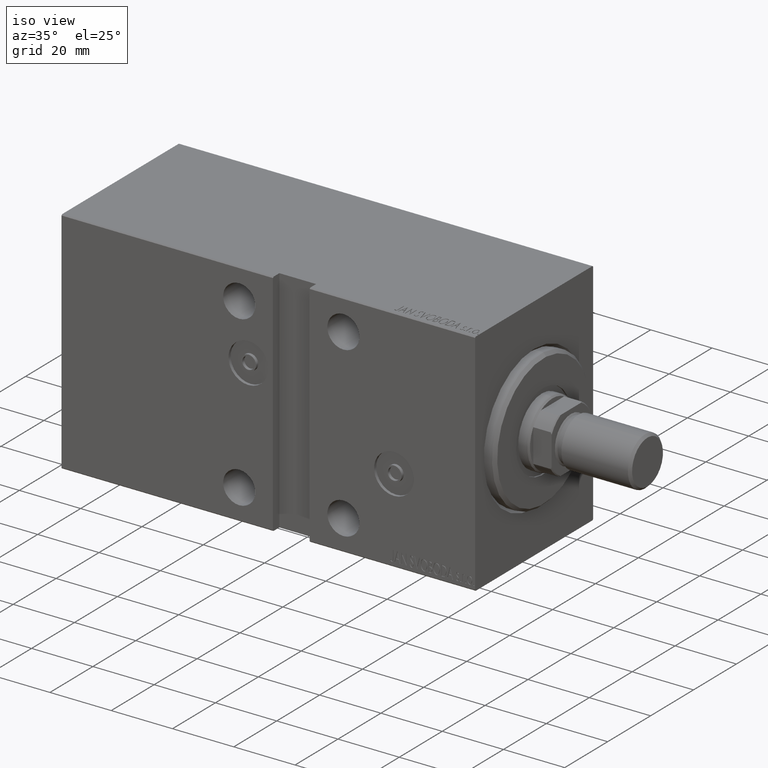
[diagram: clean part render]
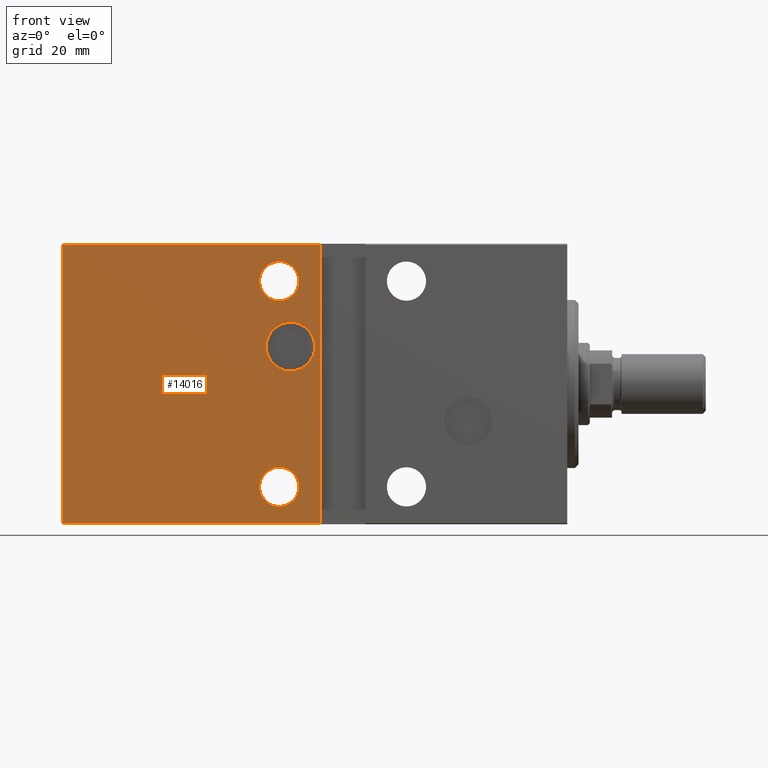
[diagram: tour spotlight — one face highlighted and labeled with its STEP entity id]
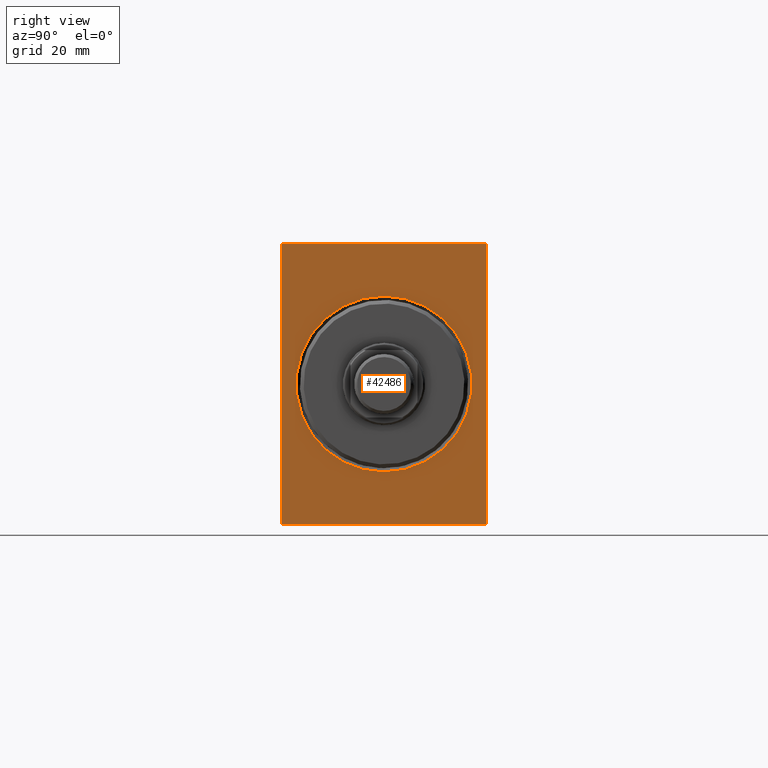
[diagram: tour spotlight — one face highlighted and labeled with its STEP entity id]
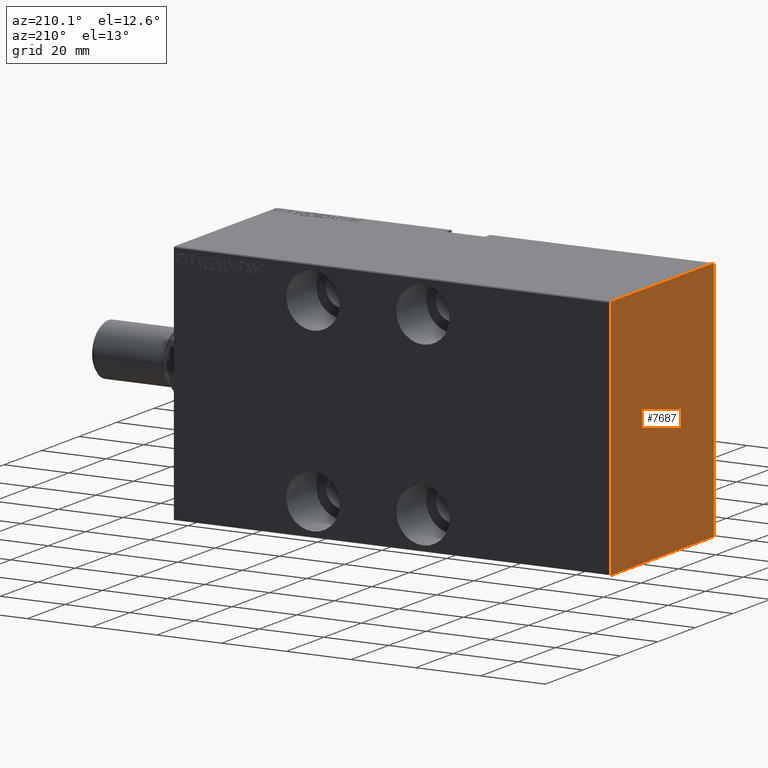
[diagram: tour spotlight — one face highlighted and labeled with its STEP entity id]
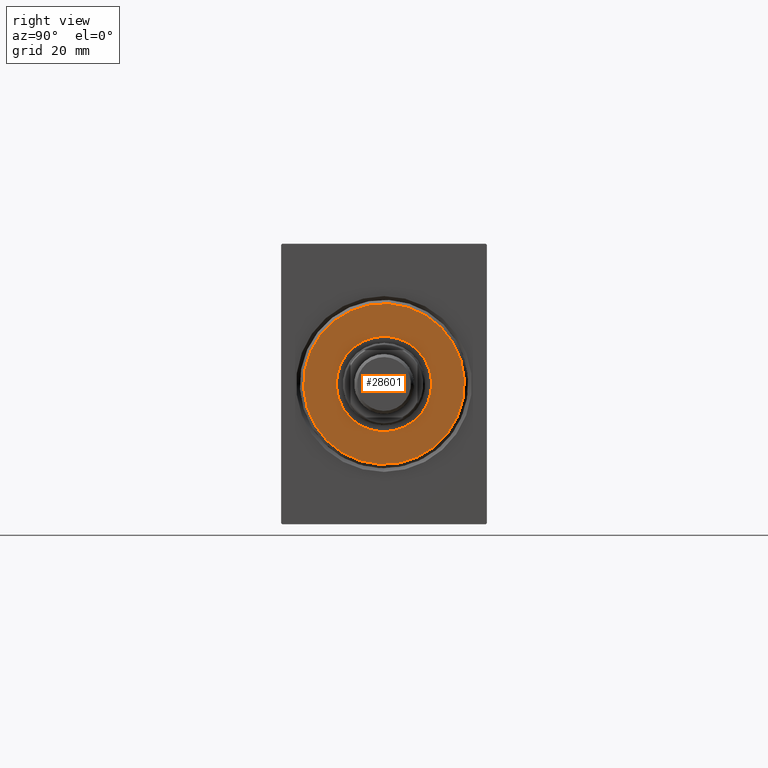
[diagram: tour spotlight — one face highlighted and labeled with its STEP entity id]
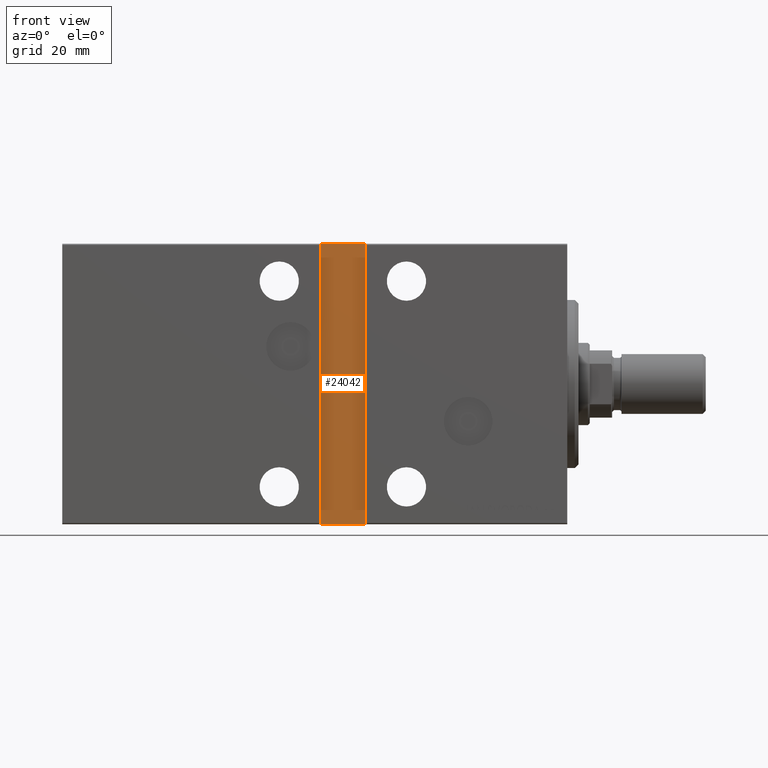
[diagram: tour spotlight — one face highlighted and labeled with its STEP entity id]
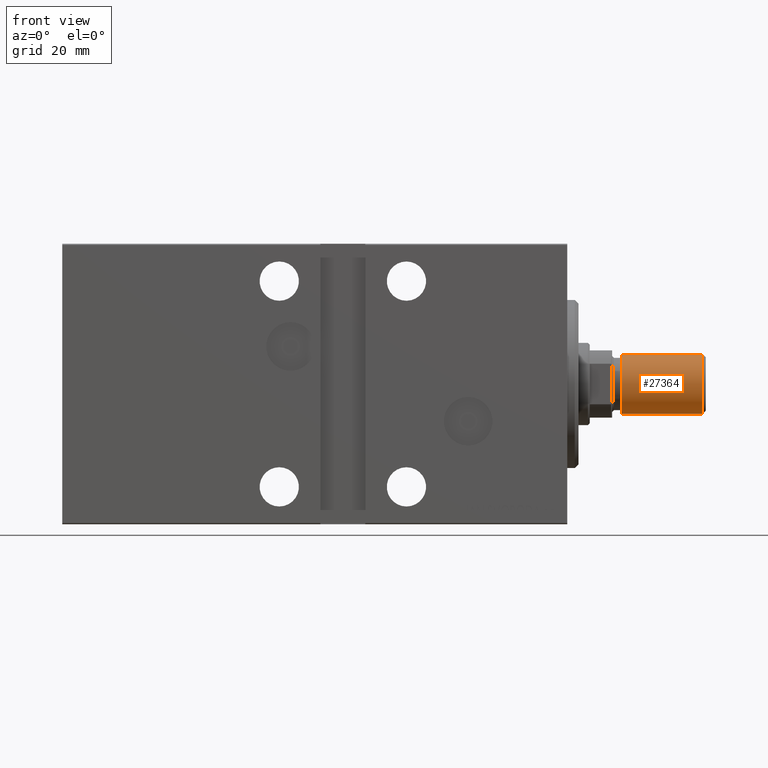
[diagram: tour spotlight — one face highlighted and labeled with its STEP entity id]
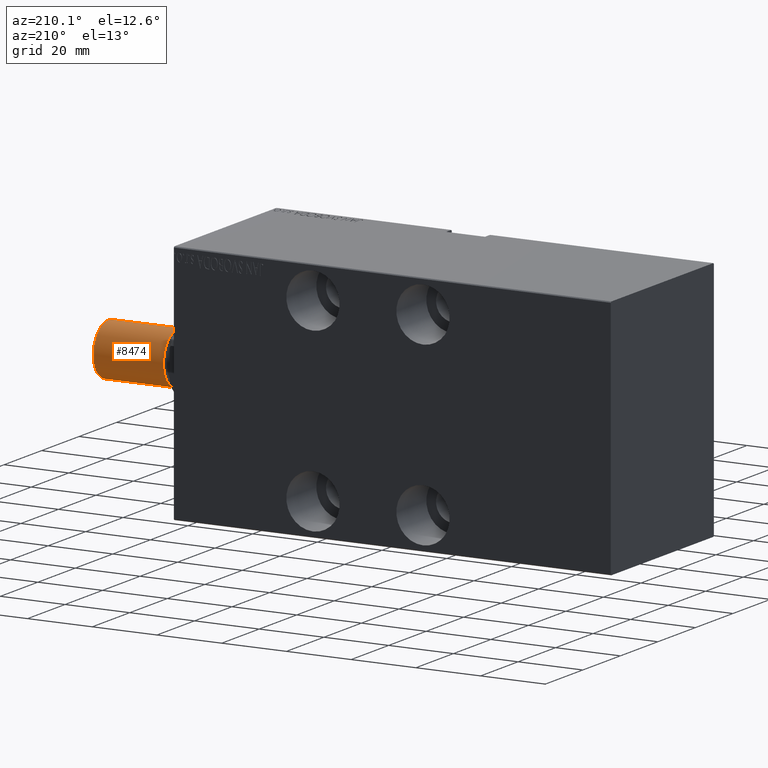
[diagram: tour spotlight — one face highlighted and labeled with its STEP entity id]
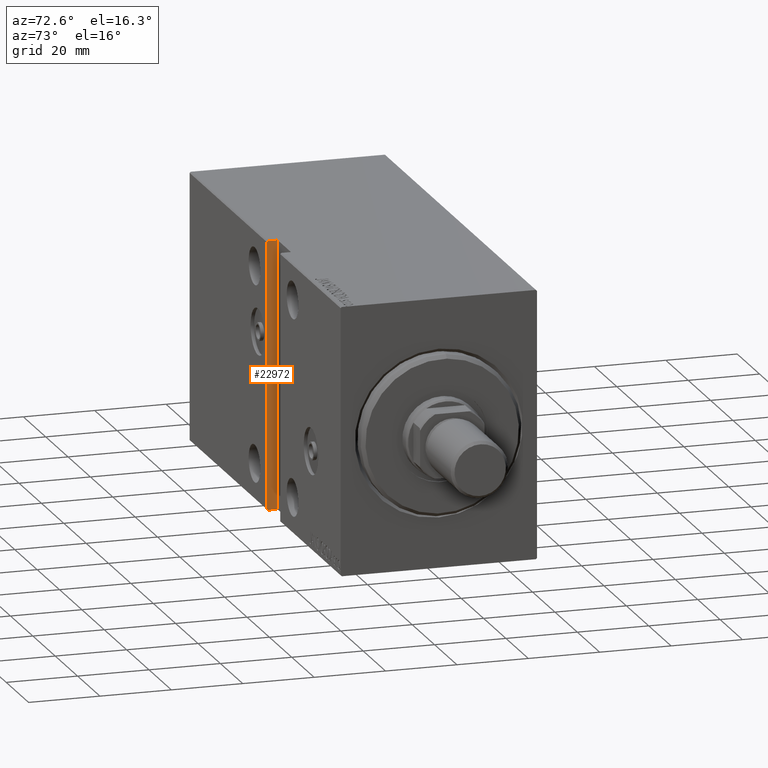
[diagram: tour spotlight — one face highlighted and labeled with its STEP entity id]
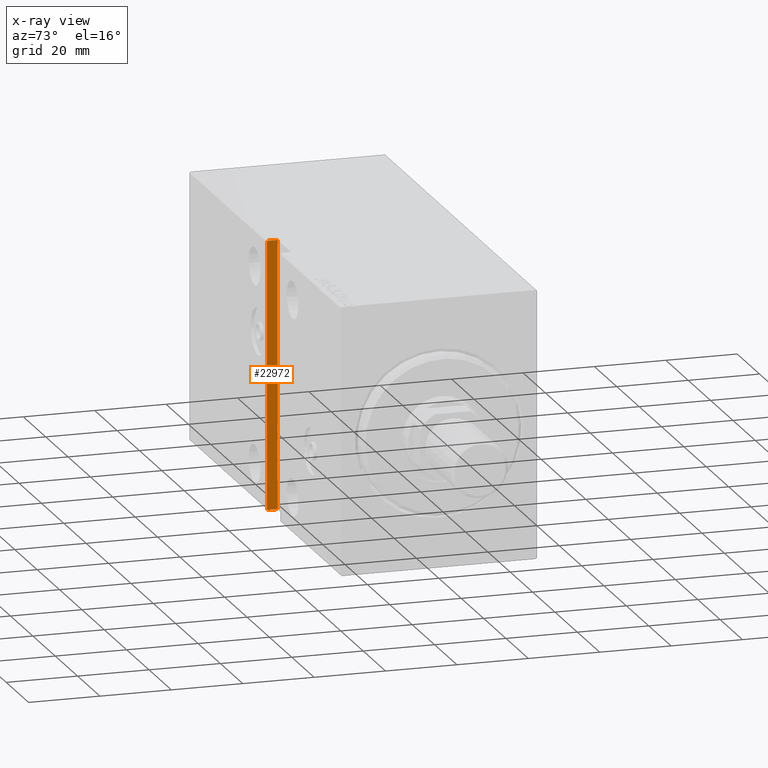
[diagram: x-ray of the same camera — body ghosted, this tour face saturated]
A machine part: a face-by-face anatomy tour. The part has 909 B-rep faces; the first image is the clean iso view, then the 8 largest visible faces are spotlighted one at a time (largest first), each with its STEP entity span.

Face 1 — front view, entity #14016. In plain terms, the highlighted planar face has unit normal (-0, 1, -0).
Definition (entity closure, byte-faithful):
#1264 = AXIS2_PLACEMENT_3D ( 'NONE', #22822, #43369, #9634 ) ;
#1391 = DIRECTION ( 'NONE',  ( 0.000000000000000000, 1.000000000000000000, 1.067522139062650425E-16 ) ) ;
#1718 = EDGE_CURVE ( 'NONE', #2265, #20925, #32822, .T. ) ;
#1750 = ORIENTED_EDGE ( 'NONE', *, *, #27455, .F. ) ;
#1864 = VERTEX_POINT ( 'NONE', #27452 ) ;
#2020 = FACE_OUTER_BOUND ( 'NONE', #36883, .T. ) ;
#2203 = ORIENTED_EDGE ( 'NONE', *, *, #34021, .F. ) ;
#2265 = VERTEX_POINT ( 'NONE', #33601 ) ;
#2428 = CARTESIAN_POINT ( 'NONE',  ( 66.00000000000001421, 27.50000000000000000, 37.50000000000001421 ) ) ;
#3398 = EDGE_LOOP ( 'NONE', ( #26917, #35622 ) ) ;
#4744 = DIRECTION ( 'NONE',  ( 0.000000000000000000, 0.000000000000000000, 1.000000000000000000 ) ) ;
#5166 = DIRECTION ( 'NONE',  ( 0.000000000000000000, 9.251858538542970348E-17, -1.000000000000000000 ) ) ;
#5597 = CARTESIAN_POINT ( 'NONE',  ( 135.0000000000000000, 27.50000000000000355, -37.50000000000000000 ) ) ;
#5632 = CIRCLE ( 'NONE', #25636, 5.250000000000004441 ) ;
#5853 = CARTESIAN_POINT ( 'NONE',  ( 66.00000000000000000, 27.50000000000000000, -37.19999999999998863 ) ) ;
#6729 = CARTESIAN_POINT ( 'NONE',  ( 77.00000000000001421, 27.50000000000002487, 32.75000000000000000 ) ) ;
#8188 = VERTEX_POINT ( 'NONE', #6729 ) ;
#8322 = VECTOR ( 'NONE', #21316, 1000.000000000000000 ) ;
#8631 = LINE ( 'NONE', #22701, #42677 ) ;
#8657 = DIRECTION ( 'NONE',  ( 0.000000000000000000, 0.000000000000000000, 1.000000000000000000 ) ) ;
#8878 = CARTESIAN_POINT ( 'NONE',  ( 77.00000000000000000, 27.50000000000002487, -27.50000000000000000 ) ) ;
#8906 = CARTESIAN_POINT ( 'NONE',  ( 74.00000000000000000, 27.50000000000000000, 10.00000000000000178 ) ) ;
#9634 = DIRECTION ( 'NONE',  ( 0.000000000000000000, 0.000000000000000000, 1.000000000000000000 ) ) ;
#9730 = CIRCLE ( 'NONE', #20465, 6.500000000000002665 ) ;
#10505 = EDGE_CURVE ( 'NONE', #40959, #8188, #27178, .T. ) ;
#10648 = VECTOR ( 'NONE', #12707, 1000.000000000000000 ) ;
#11825 = VERTEX_POINT ( 'NONE', #25979 ) ;
#12151 = CIRCLE ( 'NONE', #15721, 5.250000000000000888 ) ;
#12414 = EDGE_CURVE ( 'NONE', #2265, #25672, #36601, .T. ) ;
#12707 = DIRECTION ( 'NONE',  ( -1.850371707708594070E-16, 0.000000000000000000, -1.000000000000000000 ) ) ;
#13170 = EDGE_CURVE ( 'NONE', #1864, #29902, #35127, .T. ) ;
#13235 = EDGE_LOOP ( 'NONE', ( #1750, #2203 ) ) ;
#13471 = ORIENTED_EDGE ( 'NONE', *, *, #20826, .F. ) ;
#14016 = ADVANCED_FACE ( 'NONE', ( #22596, #36216, #32637, #2020 ), #22383, .F. ) ;
#15120 = AXIS2_PLACEMENT_3D ( 'NONE', #5597, #29519, #5166 ) ;
#15470 = CARTESIAN_POINT ( 'NONE',  ( 74.00000000000000000, 27.50000000000000000, 10.00000000000000178 ) ) ;
#15721 = AXIS2_PLACEMENT_3D ( 'NONE', #33434, #37011, #43723 ) ;
#16191 = CARTESIAN_POINT ( 'NONE',  ( 74.00000000000000000, 27.50000000000000000, 3.500000000000000444 ) ) ;
#16224 = CARTESIAN_POINT ( 'NONE',  ( 77.00000000000001421, 27.50000000000002487, 27.50000000000000000 ) ) ;
#16712 = CARTESIAN_POINT ( 'NONE',  ( 135.0000000000000000, 27.49999999999999645, 37.20000000000001705 ) ) ;
#17446 = ORIENTED_EDGE ( 'NONE', *, *, #1718, .F. ) ;
#19193 = ORIENTED_EDGE ( 'NONE', *, *, #26581, .T. ) ;
#19787 = ORIENTED_EDGE ( 'NONE', *, *, #12414, .T. ) ;
#20465 = AXIS2_PLACEMENT_3D ( 'NONE', #15470, #1391, #4744 ) ;
#20682 = EDGE_CURVE ( 'NONE', #11825, #25672, #38289, .T. ) ;
#20826 = EDGE_CURVE ( 'NONE', #29902, #1864, #9730, .T. ) ;
#20925 = VERTEX_POINT ( 'NONE', #5853 ) ;
#21316 = DIRECTION ( 'NONE',  ( 0.000000000000000000, -9.251858538542970348E-17, 1.000000000000000000 ) ) ;
#22383 = PLANE ( 'NONE',  #15120 ) ;
#22580 = CARTESIAN_POINT ( 'NONE',  ( 77.00000000000000000, 27.50000000000002487, -32.75000000000000000 ) ) ;
#22596 = FACE_BOUND ( 'NONE', #40749, .T. ) ;
#22701 = CARTESIAN_POINT ( 'NONE',  ( 135.0000000000000000, 27.50000000000000355, -37.19999999999998863 ) ) ;
#22822 = CARTESIAN_POINT ( 'NONE',  ( 77.00000000000000000, 27.50000000000002487, -27.50000000000000000 ) ) ;
#22932 = ORIENTED_EDGE ( 'NONE', *, *, #13170, .F. ) ;
#24451 = CARTESIAN_POINT ( 'NONE',  ( 135.0000000000000000, 27.50000000000000355, -37.50000000000000000 ) ) ;
#25629 = DIRECTION ( 'NONE',  ( 0.000000000000000000, 1.000000000000000000, 0.000000000000000000 ) ) ;
#25636 = AXIS2_PLACEMENT_3D ( 'NONE', #8878, #25629, #8657 ) ;
#25672 = VERTEX_POINT ( 'NONE', #42864 ) ;
#25979 = CARTESIAN_POINT ( 'NONE',  ( 135.0000000000000000, 27.50000000000000355, -37.19999999999998863 ) ) ;
#26581 = EDGE_CURVE ( 'NONE', #11825, #20925, #8631, .T. ) ;
#26917 = ORIENTED_EDGE ( 'NONE', *, *, #32239, .F. ) ;
#27178 = CIRCLE ( 'NONE', #32879, 5.250000000000000888 ) ;
#27452 = CARTESIAN_POINT ( 'NONE',  ( 74.00000000000000000, 27.50000000000000000, 16.50000000000000355 ) ) ;
#27455 = EDGE_CURVE ( 'NONE', #36385, #39092, #41261, .T. ) ;
#29188 = DIRECTION ( 'NONE',  ( 0.000000000000000000, 1.000000000000000000, 0.000000000000000000 ) ) ;
#29414 = DIRECTION ( 'NONE',  ( 0.000000000000000000, 0.000000000000000000, 1.000000000000000000 ) ) ;
#29519 = DIRECTION ( 'NONE',  ( 0.000000000000000000, -1.000000000000000000, -9.251858538542970348E-17 ) ) ;
#29902 = VERTEX_POINT ( 'NONE', #16191 ) ;
#30084 = VECTOR ( 'NONE', #37035, 1000.000000000000000 ) ;
#32239 = EDGE_CURVE ( 'NONE', #8188, #40959, #12151, .T. ) ;
#32637 = FACE_BOUND ( 'NONE', #3398, .T. ) ;
#32822 = LINE ( 'NONE', #2428, #10648 ) ;
#32879 = AXIS2_PLACEMENT_3D ( 'NONE', #16224, #29188, #29414 ) ;
#33434 = CARTESIAN_POINT ( 'NONE',  ( 77.00000000000001421, 27.50000000000002487, 27.50000000000000000 ) ) ;
#33601 = CARTESIAN_POINT ( 'NONE',  ( 66.00000000000001421, 27.50000000000000000, 37.20000000000001705 ) ) ;
#33690 = CARTESIAN_POINT ( 'NONE',  ( 77.00000000000000000, 27.50000000000002487, -22.24999999999999645 ) ) ;
#33860 = ORIENTED_EDGE ( 'NONE', *, *, #20682, .F. ) ;
#34021 = EDGE_CURVE ( 'NONE', #39092, #36385, #5632, .T. ) ;
#35127 = CIRCLE ( 'NONE', #41547, 6.500000000000002665 ) ;
#35622 = ORIENTED_EDGE ( 'NONE', *, *, #10505, .F. ) ;
#36216 = FACE_BOUND ( 'NONE', #13235, .T. ) ;
#36385 = VERTEX_POINT ( 'NONE', #33690 ) ;
#36601 = LINE ( 'NONE', #16712, #30084 ) ;
#36883 = EDGE_LOOP ( 'NONE', ( #33860, #19193, #17446, #19787 ) ) ;
#37011 = DIRECTION ( 'NONE',  ( 0.000000000000000000, 1.000000000000000000, 0.000000000000000000 ) ) ;
#37035 = DIRECTION ( 'NONE',  ( 1.000000000000000000, 0.000000000000000000, 0.000000000000000000 ) ) ;
#37102 = CARTESIAN_POINT ( 'NONE',  ( 77.00000000000001421, 27.50000000000002487, 22.24999999999999645 ) ) ;
#38289 = LINE ( 'NONE', #24451, #8322 ) ;
#38859 = DIRECTION ( 'NONE',  ( 0.000000000000000000, 0.000000000000000000, 1.000000000000000000 ) ) ;
#39092 = VERTEX_POINT ( 'NONE', #22580 ) ;
#40749 = EDGE_LOOP ( 'NONE', ( #22932, #13471 ) ) ;
#40959 = VERTEX_POINT ( 'NONE', #37102 ) ;
#41261 = CIRCLE ( 'NONE', #1264, 5.250000000000004441 ) ;
#41547 = AXIS2_PLACEMENT_3D ( 'NONE', #8906, #41987, #38859 ) ;
#41987 = DIRECTION ( 'NONE',  ( 0.000000000000000000, 1.000000000000000000, 1.067522139062650425E-16 ) ) ;
#42677 = VECTOR ( 'NONE', #43042, 1000.000000000000000 ) ;
#42864 = CARTESIAN_POINT ( 'NONE',  ( 135.0000000000000000, 27.49999999999999645, 37.20000000000001705 ) ) ;
#43042 = DIRECTION ( 'NONE',  ( -1.000000000000000000, 0.000000000000000000, 0.000000000000000000 ) ) ;
#43369 = DIRECTION ( 'NONE',  ( 0.000000000000000000, 1.000000000000000000, 0.000000000000000000 ) ) ;
#43723 = DIRECTION ( 'NONE',  ( 0.000000000000000000, 0.000000000000000000, 1.000000000000000000 ) ) ;

Face 2 — right view, entity #42486. In plain terms, the highlighted planar face has unit normal (-1, -0, 0).
Definition (entity closure, byte-faithful):
#732 = AXIS2_PLACEMENT_3D ( 'NONE', #37577, #37798, #23498 ) ;
#2138 = CARTESIAN_POINT ( 'NONE',  ( 0.000000000000000000, 27.49999999999999645, 37.50000000000000711 ) ) ;
#2492 = CARTESIAN_POINT ( 'NONE',  ( 0.000000000000000000, -27.49999999999999645, -37.19999999999999574 ) ) ;
#2830 = VECTOR ( 'NONE', #27398, 1000.000000000000000 ) ;
#3407 = DIRECTION ( 'NONE',  ( -0.000000000000000000, 0.7071067811865474617, 0.7071067811865474617 ) ) ;
#3516 = CARTESIAN_POINT ( 'NONE',  ( 0.000000000000000000, 27.50000000000000355, -37.19999999999998863 ) ) ;
#3649 = ORIENTED_EDGE ( 'NONE', *, *, #43550, .T. ) ;
#3679 = VECTOR ( 'NONE', #32198, 1000.000000000000114 ) ;
#3759 = EDGE_CURVE ( 'NONE', #10348, #28480, #36467, .T. ) ;
#3764 = VERTEX_POINT ( 'NONE', #2492 ) ;
#3772 = CARTESIAN_POINT ( 'NONE',  ( 0.000000000000000000, 2.877919977996282293E-15, -23.50000000000001776 ) ) ;
#3988 = DIRECTION ( 'NONE',  ( 1.000000000000000000, 0.000000000000000000, 0.000000000000000000 ) ) ;
#4391 = VECTOR ( 'NONE', #3407, 1000.000000000000114 ) ;
#4399 = VECTOR ( 'NONE', #14019, 1000.000000000000114 ) ;
#4719 = CARTESIAN_POINT ( 'NONE',  ( 0.000000000000000000, 27.49999999999999645, 37.20000000000001705 ) ) ;
#4930 = LINE ( 'NONE', #18578, #3679 ) ;
#5025 = CARTESIAN_POINT ( 'NONE',  ( 0.000000000000000000, 27.50000000000000355, -37.50000000000000000 ) ) ;
#5894 = CIRCLE ( 'NONE', #9446, 23.50000000000001776 ) ;
#6389 = LINE ( 'NONE', #2138, #22170 ) ;
#7081 = EDGE_CURVE ( 'NONE', #10348, #3764, #4930, .T. ) ;
#7235 = VERTEX_POINT ( 'NONE', #30610 ) ;
#7599 = VERTEX_POINT ( 'NONE', #3516 ) ;
#8158 = ORIENTED_EDGE ( 'NONE', *, *, #31337, .T. ) ;
#9446 = AXIS2_PLACEMENT_3D ( 'NONE', #21001, #3988, #17622 ) ;
#9606 = FACE_OUTER_BOUND ( 'NONE', #37572, .T. ) ;
#9724 = CARTESIAN_POINT ( 'NONE',  ( 0.000000000000000000, -27.19999999999998863, 37.50000000000000711 ) ) ;
#10348 = VERTEX_POINT ( 'NONE', #27216 ) ;
#10708 = VECTOR ( 'NONE', #40046, 1000.000000000000000 ) ;
#11812 = EDGE_CURVE ( 'NONE', #7599, #28480, #44176, .T. ) ;
#12634 = VERTEX_POINT ( 'NONE', #9724 ) ;
#12772 = CARTESIAN_POINT ( 'NONE',  ( 0.000000000000000000, -27.49999999999999645, -37.50000000000000711 ) ) ;
#12872 = ORIENTED_EDGE ( 'NONE', *, *, #17943, .F. ) ;
#14019 = DIRECTION ( 'NONE',  ( 0.000000000000000000, -0.7071067811865474617, -0.7071067811865474617 ) ) ;
#14234 = CARTESIAN_POINT ( 'NONE',  ( 0.000000000000000000, 27.50000000000000355, -37.19999999999998863 ) ) ;
#14795 = ORIENTED_EDGE ( 'NONE', *, *, #3759, .F. ) ;
#15113 = AXIS2_PLACEMENT_3D ( 'NONE', #43131, #33282, #15866 ) ;
#15866 = DIRECTION ( 'NONE',  ( 0.000000000000000000, 0.000000000000000000, -1.000000000000000000 ) ) ;
#17114 = LINE ( 'NONE', #31184, #2830 ) ;
#17159 = ORIENTED_EDGE ( 'NONE', *, *, #32798, .T. ) ;
#17622 = DIRECTION ( 'NONE',  ( 0.000000000000000000, 0.000000000000000000, -1.000000000000000000 ) ) ;
#17943 = EDGE_CURVE ( 'NONE', #7599, #40913, #40437, .T. ) ;
#17964 = LINE ( 'NONE', #38515, #37779 ) ;
#18578 = CARTESIAN_POINT ( 'NONE',  ( 0.000000000000000000, -27.19999999999998863, -37.50000000000000711 ) ) ;
#20639 = CARTESIAN_POINT ( 'NONE',  ( 0.000000000000000000, -27.49999999999999645, 37.19999999999999574 ) ) ;
#20793 = CARTESIAN_POINT ( 'NONE',  ( 0.000000000000000000, 0.000000000000000000, 23.50000000000001776 ) ) ;
#21001 = CARTESIAN_POINT ( 'NONE',  ( 0.000000000000000000, 0.000000000000000000, 0.000000000000000000 ) ) ;
#22170 = VECTOR ( 'NONE', #43048, 1000.000000000000000 ) ;
#22558 = CARTESIAN_POINT ( 'NONE',  ( 0.000000000000000000, 27.19999999999999574, -37.50000000000000000 ) ) ;
#23498 = DIRECTION ( 'NONE',  ( 0.000000000000000000, 0.000000000000000000, -1.000000000000000000 ) ) ;
#23532 = ORIENTED_EDGE ( 'NONE', *, *, #40729, .T. ) ;
#25694 = PLANE ( 'NONE',  #15113 ) ;
#27216 = CARTESIAN_POINT ( 'NONE',  ( 0.000000000000000000, -27.19999999999998863, -37.50000000000000711 ) ) ;
#27398 = DIRECTION ( 'NONE',  ( -0.000000000000000000, 0.7071067811865556774, -0.7071067811865393571 ) ) ;
#28480 = VERTEX_POINT ( 'NONE', #22558 ) ;
#28665 = DIRECTION ( 'NONE',  ( 0.000000000000000000, 0.000000000000000000, -1.000000000000000000 ) ) ;
#29173 = CIRCLE ( 'NONE', #732, 23.50000000000001776 ) ;
#29461 = VERTEX_POINT ( 'NONE', #41967 ) ;
#29501 = VECTOR ( 'NONE', #41919, 1000.000000000000000 ) ;
#30207 = EDGE_CURVE ( 'NONE', #29461, #3764, #17964, .T. ) ;
#30610 = CARTESIAN_POINT ( 'NONE',  ( 0.000000000000000000, 27.20000000000000284, 37.50000000000000711 ) ) ;
#31184 = CARTESIAN_POINT ( 'NONE',  ( 0.000000000000000000, 27.20000000000000284, 37.50000000000000711 ) ) ;
#31337 = EDGE_CURVE ( 'NONE', #7235, #40913, #17114, .T. ) ;
#32198 = DIRECTION ( 'NONE',  ( -0.000000000000000000, -0.7071067811865474617, 0.7071067811865474617 ) ) ;
#32798 = EDGE_CURVE ( 'NONE', #36176, #33755, #29173, .T. ) ;
#33282 = DIRECTION ( 'NONE',  ( 1.000000000000000000, 0.000000000000000000, 0.000000000000000000 ) ) ;
#33755 = VERTEX_POINT ( 'NONE', #3772 ) ;
#34029 = LINE ( 'NONE', #20639, #4391 ) ;
#36166 = ORIENTED_EDGE ( 'NONE', *, *, #38156, .F. ) ;
#36176 = VERTEX_POINT ( 'NONE', #20793 ) ;
#36467 = LINE ( 'NONE', #12772, #10708 ) ;
#37388 = ORIENTED_EDGE ( 'NONE', *, *, #11812, .T. ) ;
#37572 = EDGE_LOOP ( 'NONE', ( #36166, #8158, #12872, #37388, #14795, #42603, #41206, #23532 ) ) ;
#37577 = CARTESIAN_POINT ( 'NONE',  ( 0.000000000000000000, 0.000000000000000000, 0.000000000000000000 ) ) ;
#37779 = VECTOR ( 'NONE', #28665, 1000.000000000000000 ) ;
#37798 = DIRECTION ( 'NONE',  ( 1.000000000000000000, 0.000000000000000000, 0.000000000000000000 ) ) ;
#38156 = EDGE_CURVE ( 'NONE', #7235, #12634, #6389, .T. ) ;
#38515 = CARTESIAN_POINT ( 'NONE',  ( 0.000000000000000000, -27.49999999999999645, 37.50000000000000711 ) ) ;
#39769 = FACE_BOUND ( 'NONE', #43154, .T. ) ;
#40046 = DIRECTION ( 'NONE',  ( 0.000000000000000000, 1.000000000000000000, 1.261617073437677999E-16 ) ) ;
#40437 = LINE ( 'NONE', #5025, #29501 ) ;
#40729 = EDGE_CURVE ( 'NONE', #29461, #12634, #34029, .T. ) ;
#40913 = VERTEX_POINT ( 'NONE', #4719 ) ;
#41206 = ORIENTED_EDGE ( 'NONE', *, *, #30207, .F. ) ;
#41919 = DIRECTION ( 'NONE',  ( 0.000000000000000000, -9.251858538542970348E-17, 1.000000000000000000 ) ) ;
#41967 = CARTESIAN_POINT ( 'NONE',  ( 0.000000000000000000, -27.49999999999999645, 37.19999999999999574 ) ) ;
#42486 = ADVANCED_FACE ( 'NONE', ( #39769, #9606 ), #25694, .F. ) ;
#42603 = ORIENTED_EDGE ( 'NONE', *, *, #7081, .T. ) ;
#43048 = DIRECTION ( 'NONE',  ( 0.000000000000000000, -1.000000000000000000, 0.000000000000000000 ) ) ;
#43131 = CARTESIAN_POINT ( 'NONE',  ( 0.000000000000000000, 0.000000000000000000, 0.000000000000000000 ) ) ;
#43154 = EDGE_LOOP ( 'NONE', ( #17159, #3649 ) ) ;
#43550 = EDGE_CURVE ( 'NONE', #33755, #36176, #5894, .T. ) ;
#44176 = LINE ( 'NONE', #14234, #4399 ) ;

Face 3 — auxiliary view, entity #7687. In plain terms, the highlighted planar face has unit normal (-1, -0, 0).
Definition (entity closure, byte-faithful):
#218 = DIRECTION ( 'NONE',  ( -0.000000000000000000, 0.7071067811865474617, 0.7071067811865474617 ) ) ;
#987 = DIRECTION ( 'NONE',  ( 0.000000000000000000, 0.000000000000000000, -1.000000000000000000 ) ) ;
#2322 = ORIENTED_EDGE ( 'NONE', *, *, #30956, .T. ) ;
#3614 = VECTOR ( 'NONE', #42082, 1000.000000000000114 ) ;
#4279 = ORIENTED_EDGE ( 'NONE', *, *, #25903, .T. ) ;
#4644 = EDGE_CURVE ( 'NONE', #34253, #38278, #42968, .T. ) ;
#5183 = CARTESIAN_POINT ( 'NONE',  ( 135.0000000000000000, -27.19999999999998863, -37.50000000000000711 ) ) ;
#6046 = ORIENTED_EDGE ( 'NONE', *, *, #29769, .T. ) ;
#6338 = VERTEX_POINT ( 'NONE', #30603 ) ;
#7687 = ADVANCED_FACE ( 'NONE', ( #10907 ), #8409, .T. ) ;
#7710 = CARTESIAN_POINT ( 'NONE',  ( 135.0000000000000000, -27.49999999999999645, 37.19999999999999574 ) ) ;
#8322 = VECTOR ( 'NONE', #21316, 1000.000000000000000 ) ;
#8409 = PLANE ( 'NONE',  #24356 ) ;
#9243 = EDGE_CURVE ( 'NONE', #6338, #11825, #15883, .T. ) ;
#9359 = VERTEX_POINT ( 'NONE', #11161 ) ;
#10437 = CARTESIAN_POINT ( 'NONE',  ( 135.0000000000000000, 27.49999999999999645, 37.50000000000000711 ) ) ;
#10907 = FACE_OUTER_BOUND ( 'NONE', #32634, .T. ) ;
#11161 = CARTESIAN_POINT ( 'NONE',  ( 135.0000000000000000, 27.20000000000000284, 37.50000000000000711 ) ) ;
#11344 = CARTESIAN_POINT ( 'NONE',  ( 135.0000000000000000, 32.34999999999968168, 32.35000000000043485 ) ) ;
#11825 = VERTEX_POINT ( 'NONE', #25979 ) ;
#11997 = LINE ( 'NONE', #11344, #18659 ) ;
#12304 = VECTOR ( 'NONE', #21425, 1000.000000000000000 ) ;
#12983 = VECTOR ( 'NONE', #218, 1000.000000000000114 ) ;
#13715 = ORIENTED_EDGE ( 'NONE', *, *, #20682, .T. ) ;
#14226 = DIRECTION ( 'NONE',  ( 0.000000000000000000, -1.000000000000000000, 0.000000000000000000 ) ) ;
#15652 = VERTEX_POINT ( 'NONE', #5183 ) ;
#15883 = LINE ( 'NONE', #29512, #12983 ) ;
#18048 = ORIENTED_EDGE ( 'NONE', *, *, #4644, .T. ) ;
#18057 = DIRECTION ( 'NONE',  ( -0.000000000000000000, -0.7071067811865556774, 0.7071067811865393571 ) ) ;
#18107 = CARTESIAN_POINT ( 'NONE',  ( 135.0000000000000000, -27.49999999999999645, -37.19999999999999574 ) ) ;
#18659 = VECTOR ( 'NONE', #18057, 1000.000000000000000 ) ;
#20682 = EDGE_CURVE ( 'NONE', #11825, #25672, #38289, .T. ) ;
#21127 = CARTESIAN_POINT ( 'NONE',  ( 135.0000000000000000, -27.49999999999999645, 37.50000000000000711 ) ) ;
#21316 = DIRECTION ( 'NONE',  ( 0.000000000000000000, -9.251858538542970348E-17, 1.000000000000000000 ) ) ;
#21388 = VECTOR ( 'NONE', #14226, 1000.000000000000000 ) ;
#21425 = DIRECTION ( 'NONE',  ( 0.000000000000000000, 1.000000000000000000, 1.261617073437677999E-16 ) ) ;
#21617 = CARTESIAN_POINT ( 'NONE',  ( 135.0000000000000000, 0.000000000000000000, 0.000000000000000000 ) ) ;
#21799 = CARTESIAN_POINT ( 'NONE',  ( 135.0000000000000000, -27.19999999999998863, 37.50000000000000711 ) ) ;
#21938 = ORIENTED_EDGE ( 'NONE', *, *, #9243, .T. ) ;
#23538 = ORIENTED_EDGE ( 'NONE', *, *, #41151, .T. ) ;
#24356 = AXIS2_PLACEMENT_3D ( 'NONE', #21617, #28306, #31659 ) ;
#24451 = CARTESIAN_POINT ( 'NONE',  ( 135.0000000000000000, 27.50000000000000355, -37.50000000000000000 ) ) ;
#24787 = VECTOR ( 'NONE', #987, 1000.000000000000000 ) ;
#25672 = VERTEX_POINT ( 'NONE', #42864 ) ;
#25903 = EDGE_CURVE ( 'NONE', #38278, #28417, #30954, .T. ) ;
#25979 = CARTESIAN_POINT ( 'NONE',  ( 135.0000000000000000, 27.50000000000000355, -37.19999999999998863 ) ) ;
#26327 = LINE ( 'NONE', #26557, #27073 ) ;
#26557 = CARTESIAN_POINT ( 'NONE',  ( 135.0000000000000000, -32.34999999999999432, -32.34999999999999432 ) ) ;
#27073 = VECTOR ( 'NONE', #43982, 1000.000000000000114 ) ;
#28306 = DIRECTION ( 'NONE',  ( 1.000000000000000000, 0.000000000000000000, 0.000000000000000000 ) ) ;
#28417 = VERTEX_POINT ( 'NONE', #18107 ) ;
#29512 = CARTESIAN_POINT ( 'NONE',  ( 135.0000000000000000, 32.34999999999999432, -32.34999999999999432 ) ) ;
#29769 = EDGE_CURVE ( 'NONE', #9359, #34253, #41489, .T. ) ;
#30570 = ORIENTED_EDGE ( 'NONE', *, *, #43559, .T. ) ;
#30603 = CARTESIAN_POINT ( 'NONE',  ( 135.0000000000000000, 27.19999999999999574, -37.50000000000000000 ) ) ;
#30954 = LINE ( 'NONE', #21127, #24787 ) ;
#30956 = EDGE_CURVE ( 'NONE', #28417, #15652, #26327, .T. ) ;
#31659 = DIRECTION ( 'NONE',  ( 0.000000000000000000, 0.000000000000000000, -1.000000000000000000 ) ) ;
#31799 = CARTESIAN_POINT ( 'NONE',  ( 135.0000000000000000, -32.34999999999999432, 32.34999999999999432 ) ) ;
#31897 = LINE ( 'NONE', #41758, #12304 ) ;
#32634 = EDGE_LOOP ( 'NONE', ( #30570, #21938, #13715, #23538, #6046, #18048, #4279, #2322 ) ) ;
#34253 = VERTEX_POINT ( 'NONE', #21799 ) ;
#38278 = VERTEX_POINT ( 'NONE', #7710 ) ;
#38289 = LINE ( 'NONE', #24451, #8322 ) ;
#41151 = EDGE_CURVE ( 'NONE', #25672, #9359, #11997, .T. ) ;
#41489 = LINE ( 'NONE', #10437, #21388 ) ;
#41758 = CARTESIAN_POINT ( 'NONE',  ( 135.0000000000000000, -27.49999999999999645, -37.50000000000000711 ) ) ;
#42082 = DIRECTION ( 'NONE',  ( 0.000000000000000000, -0.7071067811865474617, -0.7071067811865474617 ) ) ;
#42864 = CARTESIAN_POINT ( 'NONE',  ( 135.0000000000000000, 27.49999999999999645, 37.20000000000001705 ) ) ;
#42968 = LINE ( 'NONE', #31799, #3614 ) ;
#43559 = EDGE_CURVE ( 'NONE', #15652, #6338, #31897, .T. ) ;
#43982 = DIRECTION ( 'NONE',  ( -0.000000000000000000, 0.7071067811865474617, -0.7071067811865474617 ) ) ;

Face 4 — right view, entity #28601. In plain terms, the highlighted planar face has unit normal (1, -0, -0).
Definition (entity closure, byte-faithful):
#231 = DIRECTION ( 'NONE',  ( 1.000000000000000000, 0.000000000000000000, 0.000000000000000000 ) ) ;
#447 = DIRECTION ( 'NONE',  ( 0.000000000000000000, 0.000000000000000000, -1.000000000000000000 ) ) ;
#580 = DIRECTION ( 'NONE',  ( 1.000000000000000000, -0.000000000000000000, 0.000000000000000000 ) ) ;
#767 = VERTEX_POINT ( 'NONE', #26106 ) ;
#1674 = DIRECTION ( 'NONE',  ( 1.000000000000000000, 0.000000000000000000, 0.000000000000000000 ) ) ;
#5917 = CARTESIAN_POINT ( 'NONE',  ( 3.000000000000000000, 0.000000000000000000, 0.000000000000000000 ) ) ;
#6177 = EDGE_LOOP ( 'NONE', ( #24587, #12095 ) ) ;
#6510 = VERTEX_POINT ( 'NONE', #19628 ) ;
#7119 = AXIS2_PLACEMENT_3D ( 'NONE', #5917, #1674, #33177 ) ;
#8750 = VERTEX_POINT ( 'NONE', #24888 ) ;
#9593 = PLANE ( 'NONE',  #24910 ) ;
#12095 = ORIENTED_EDGE ( 'NONE', *, *, #29766, .T. ) ;
#12113 = CIRCLE ( 'NONE', #7119, 12.75000000000000000 ) ;
#12751 = CIRCLE ( 'NONE', #19911, 21.50000000000000355 ) ;
#14533 = VERTEX_POINT ( 'NONE', #39265 ) ;
#14998 = ORIENTED_EDGE ( 'NONE', *, *, #30692, .F. ) ;
#15679 = DIRECTION ( 'NONE',  ( 0.000000000000000000, 0.000000000000000000, -1.000000000000000000 ) ) ;
#16683 = EDGE_LOOP ( 'NONE', ( #23328, #14998 ) ) ;
#17221 = CARTESIAN_POINT ( 'NONE',  ( 3.000000000000000000, 0.000000000000000000, 0.000000000000000000 ) ) ;
#17806 = AXIS2_PLACEMENT_3D ( 'NONE', #17221, #231, #447 ) ;
#19628 = CARTESIAN_POINT ( 'NONE',  ( 3.000000000000000000, 0.000000000000000000, 21.50000000000000355 ) ) ;
#19653 = DIRECTION ( 'NONE',  ( 1.000000000000000000, -0.000000000000000000, 0.000000000000000000 ) ) ;
#19911 = AXIS2_PLACEMENT_3D ( 'NONE', #33114, #22836, #15679 ) ;
#22807 = AXIS2_PLACEMENT_3D ( 'NONE', #24064, #580, #27849 ) ;
#22836 = DIRECTION ( 'NONE',  ( 1.000000000000000000, -0.000000000000000000, 0.000000000000000000 ) ) ;
#23328 = ORIENTED_EDGE ( 'NONE', *, *, #35085, .F. ) ;
#24064 = CARTESIAN_POINT ( 'NONE',  ( 3.000000000000000000, 0.000000000000000000, 0.000000000000000000 ) ) ;
#24587 = ORIENTED_EDGE ( 'NONE', *, *, #29015, .T. ) ;
#24888 = CARTESIAN_POINT ( 'NONE',  ( 3.000000000000000000, 2.694222958124177598E-15, -21.50000000000000355 ) ) ;
#24910 = AXIS2_PLACEMENT_3D ( 'NONE', #36630, #19653, #33270 ) ;
#26106 = CARTESIAN_POINT ( 'NONE',  ( 3.000000000000000000, 1.561424668912875111E-15, 12.75000000000000000 ) ) ;
#27849 = DIRECTION ( 'NONE',  ( 0.000000000000000000, 0.000000000000000000, -1.000000000000000000 ) ) ;
#28601 = ADVANCED_FACE ( 'NONE', ( #33486, #29916 ), #9593, .T. ) ;
#29015 = EDGE_CURVE ( 'NONE', #6510, #8750, #12751, .T. ) ;
#29766 = EDGE_CURVE ( 'NONE', #8750, #6510, #34196, .T. ) ;
#29916 = FACE_BOUND ( 'NONE', #16683, .T. ) ;
#30692 = EDGE_CURVE ( 'NONE', #767, #14533, #34931, .T. ) ;
#33114 = CARTESIAN_POINT ( 'NONE',  ( 3.000000000000000000, 0.000000000000000000, 0.000000000000000000 ) ) ;
#33177 = DIRECTION ( 'NONE',  ( 0.000000000000000000, 0.000000000000000000, -1.000000000000000000 ) ) ;
#33270 = DIRECTION ( 'NONE',  ( 0.000000000000000000, 0.000000000000000000, -1.000000000000000000 ) ) ;
#33486 = FACE_OUTER_BOUND ( 'NONE', #6177, .T. ) ;
#34196 = CIRCLE ( 'NONE', #22807, 21.50000000000000355 ) ;
#34931 = CIRCLE ( 'NONE', #17806, 12.75000000000000000 ) ;
#35085 = EDGE_CURVE ( 'NONE', #14533, #767, #12113, .T. ) ;
#36630 = CARTESIAN_POINT ( 'NONE',  ( 3.000000000000000000, 0.000000000000000000, 0.000000000000000000 ) ) ;
#39265 = CARTESIAN_POINT ( 'NONE',  ( 3.000000000000000000, 0.000000000000000000, -12.75000000000000000 ) ) ;

Face 5 — front view, entity #24042. In plain terms, the highlighted planar face has unit normal (0, -1, -0).
Definition (entity closure, byte-faithful):
#3281 = VECTOR ( 'NONE', #31849, 1000.000000000000000 ) ;
#4073 = EDGE_LOOP ( 'NONE', ( #41884, #6446, #6829, #4469 ) ) ;
#4354 = VERTEX_POINT ( 'NONE', #15580 ) ;
#4469 = ORIENTED_EDGE ( 'NONE', *, *, #37099, .T. ) ;
#6446 = ORIENTED_EDGE ( 'NONE', *, *, #21673, .F. ) ;
#6829 = ORIENTED_EDGE ( 'NONE', *, *, #20364, .T. ) ;
#7523 = LINE ( 'NONE', #21162, #3281 ) ;
#8263 = LINE ( 'NONE', #31728, #8869 ) ;
#8869 = VECTOR ( 'NONE', #34869, 1000.000000000000000 ) ;
#12690 = CARTESIAN_POINT ( 'NONE',  ( 66.00000000000001421, 24.50000000000000000, 37.50000000000001421 ) ) ;
#13746 = FACE_OUTER_BOUND ( 'NONE', #4073, .T. ) ;
#14294 = VECTOR ( 'NONE', #26762, 1000.000000000000000 ) ;
#14813 = CARTESIAN_POINT ( 'NONE',  ( 54.00000000000000000, 24.50000000000000000, 37.50000000000001421 ) ) ;
#15580 = CARTESIAN_POINT ( 'NONE',  ( 54.00000000000000000, 24.50000000000000000, -37.50000000000000000 ) ) ;
#18132 = EDGE_CURVE ( 'NONE', #4354, #35733, #43450, .T. ) ;
#18580 = CARTESIAN_POINT ( 'NONE',  ( 66.00000000000001421, 24.50000000000000000, 37.50000000000001421 ) ) ;
#20364 = EDGE_CURVE ( 'NONE', #32642, #40923, #8263, .T. ) ;
#21162 = CARTESIAN_POINT ( 'NONE',  ( 54.00000000000000000, 24.50000000000000000, 37.50000000000001421 ) ) ;
#21673 = EDGE_CURVE ( 'NONE', #32642, #4354, #7523, .T. ) ;
#22984 = LINE ( 'NONE', #12690, #14294 ) ;
#24027 = DIRECTION ( 'NONE',  ( -0.000000000000000000, 1.000000000000000000, 0.000000000000000000 ) ) ;
#24042 = ADVANCED_FACE ( 'NONE', ( #13746 ), #27378, .T. ) ;
#25258 = VECTOR ( 'NONE', #39451, 1000.000000000000000 ) ;
#26762 = DIRECTION ( 'NONE',  ( -1.850371707708594070E-16, 0.000000000000000000, -1.000000000000000000 ) ) ;
#27378 = PLANE ( 'NONE',  #31891 ) ;
#30596 = CARTESIAN_POINT ( 'NONE',  ( 66.00000000000001421, 24.50000000000000000, -37.50000000000000000 ) ) ;
#31728 = CARTESIAN_POINT ( 'NONE',  ( 54.00000000000000000, 24.50000000000000000, 37.50000000000001421 ) ) ;
#31849 = DIRECTION ( 'NONE',  ( 0.000000000000000000, 0.000000000000000000, -1.000000000000000000 ) ) ;
#31891 = AXIS2_PLACEMENT_3D ( 'NONE', #41014, #24027, #37654 ) ;
#32642 = VERTEX_POINT ( 'NONE', #14813 ) ;
#34869 = DIRECTION ( 'NONE',  ( 1.000000000000000000, 0.000000000000000000, 0.000000000000000000 ) ) ;
#35733 = VERTEX_POINT ( 'NONE', #30596 ) ;
#36086 = CARTESIAN_POINT ( 'NONE',  ( 54.00000000000000000, 24.50000000000000000, -37.50000000000000000 ) ) ;
#37099 = EDGE_CURVE ( 'NONE', #40923, #35733, #22984, .T. ) ;
#37654 = DIRECTION ( 'NONE',  ( 0.000000000000000000, -0.000000000000000000, 1.000000000000000000 ) ) ;
#39451 = DIRECTION ( 'NONE',  ( 1.000000000000000000, 0.000000000000000000, 0.000000000000000000 ) ) ;
#40923 = VERTEX_POINT ( 'NONE', #18580 ) ;
#41014 = CARTESIAN_POINT ( 'NONE',  ( 0.000000000000000000, 24.50000000000000000, 0.000000000000000000 ) ) ;
#41884 = ORIENTED_EDGE ( 'NONE', *, *, #18132, .F. ) ;
#43450 = LINE ( 'NONE', #36086, #25258 ) ;

Face 6 — front view, entity #27364. In plain terms, the highlighted cylindrical surface (edge-blend (fillet) strip) has radius 8 mm, axis along (1, 0, -0).
Definition (entity closure, byte-faithful):
#376 = CARTESIAN_POINT ( 'NONE',  ( 8.000000000000000000, 9.797174393178823685E-16, 22.50000000000000000 ) ) ;
#857 = CIRCLE ( 'NONE', #12286, 8.000000000000000000 ) ;
#1373 = CARTESIAN_POINT ( 'NONE',  ( 0.000000000000000000, 0.000000000000000000, 22.50000000000000000 ) ) ;
#1657 = ORIENTED_EDGE ( 'NONE', *, *, #7823, .F. ) ;
#3400 = VERTEX_POINT ( 'NONE', #40764 ) ;
#4881 = ORIENTED_EDGE ( 'NONE', *, *, #31209, .T. ) ;
#5236 = DIRECTION ( 'NONE',  ( 1.000000000000000000, 0.000000000000000000, 0.000000000000000000 ) ) ;
#5488 = DIRECTION ( 'NONE',  ( -0.000000000000000000, -0.000000000000000000, -1.000000000000000000 ) ) ;
#5825 = AXIS2_PLACEMENT_3D ( 'NONE', #21794, #35861, #5236 ) ;
#6054 = DIRECTION ( 'NONE',  ( 1.000000000000000000, 0.000000000000000000, 0.000000000000000000 ) ) ;
#6805 = CARTESIAN_POINT ( 'NONE',  ( -8.000000000000000000, 0.000000000000000000, 0.8000000000000160316 ) ) ;
#7823 = EDGE_CURVE ( 'NONE', #11723, #3400, #42820, .T. ) ;
#8964 = DIRECTION ( 'NONE',  ( -0.000000000000000000, -0.000000000000000000, 1.000000000000000000 ) ) ;
#10067 = EDGE_CURVE ( 'NONE', #15495, #3400, #857, .T. ) ;
#10741 = EDGE_LOOP ( 'NONE', ( #1657, #41219, #4881, #28912 ) ) ;
#11263 = AXIS2_PLACEMENT_3D ( 'NONE', #1373, #42057, #22164 ) ;
#11723 = VERTEX_POINT ( 'NONE', #376 ) ;
#12096 = FACE_OUTER_BOUND ( 'NONE', #10741, .T. ) ;
#12286 = AXIS2_PLACEMENT_3D ( 'NONE', #16778, #8964, #6054 ) ;
#12438 = DIRECTION ( 'NONE',  ( -0.000000000000000000, -0.000000000000000000, -1.000000000000000000 ) ) ;
#14956 = VECTOR ( 'NONE', #12438, 1000.000000000000000 ) ;
#15131 = LINE ( 'NONE', #39696, #14956 ) ;
#15495 = VERTEX_POINT ( 'NONE', #6805 ) ;
#16778 = CARTESIAN_POINT ( 'NONE',  ( 0.000000000000000000, 0.000000000000000000, 0.8000000000000160316 ) ) ;
#18558 = CARTESIAN_POINT ( 'NONE',  ( -8.000000000000000000, 0.000000000000000000, 22.50000000000000000 ) ) ;
#21734 = CYLINDRICAL_SURFACE ( 'NONE', #11263, 8.000000000000000000 ) ;
#21794 = CARTESIAN_POINT ( 'NONE',  ( 0.000000000000000000, 0.000000000000000000, 22.50000000000000000 ) ) ;
#22164 = DIRECTION ( 'NONE',  ( -1.000000000000000000, 0.000000000000000000, 0.000000000000000000 ) ) ;
#27364 = ADVANCED_FACE ( 'NONE', ( #12096 ), #21734, .T. ) ;
#28669 = CIRCLE ( 'NONE', #5825, 8.000000000000000000 ) ;
#28912 = ORIENTED_EDGE ( 'NONE', *, *, #10067, .T. ) ;
#31209 = EDGE_CURVE ( 'NONE', #43370, #15495, #15131, .T. ) ;
#35861 = DIRECTION ( 'NONE',  ( 0.000000000000000000, 0.000000000000000000, 1.000000000000000000 ) ) ;
#38635 = VECTOR ( 'NONE', #5488, 1000.000000000000000 ) ;
#39696 = CARTESIAN_POINT ( 'NONE',  ( -8.000000000000000000, 0.000000000000000000, 22.50000000000000000 ) ) ;
#40764 = CARTESIAN_POINT ( 'NONE',  ( 8.000000000000000000, 9.797174393178823685E-16, 0.8000000000000160316 ) ) ;
#41219 = ORIENTED_EDGE ( 'NONE', *, *, #41551, .F. ) ;
#41551 = EDGE_CURVE ( 'NONE', #43370, #11723, #28669, .T. ) ;
#42057 = DIRECTION ( 'NONE',  ( -0.000000000000000000, -0.000000000000000000, -1.000000000000000000 ) ) ;
#42601 = CARTESIAN_POINT ( 'NONE',  ( 8.000000000000000000, 9.797174393178823685E-16, 22.50000000000000000 ) ) ;
#42820 = LINE ( 'NONE', #42601, #38635 ) ;
#43370 = VERTEX_POINT ( 'NONE', #18558 ) ;

Face 7 — auxiliary view, entity #8474. In plain terms, the highlighted cylindrical surface (edge-blend (fillet) strip) has radius 8 mm, axis along (1, 0, -0).
Definition (entity closure, byte-faithful):
#376 = CARTESIAN_POINT ( 'NONE',  ( 8.000000000000000000, 9.797174393178823685E-16, 22.50000000000000000 ) ) ;
#746 = DIRECTION ( 'NONE',  ( -0.000000000000000000, -0.000000000000000000, 1.000000000000000000 ) ) ;
#967 = CARTESIAN_POINT ( 'NONE',  ( 0.000000000000000000, 0.000000000000000000, 0.8000000000000160316 ) ) ;
#3400 = VERTEX_POINT ( 'NONE', #40764 ) ;
#4559 = ORIENTED_EDGE ( 'NONE', *, *, #17374, .T. ) ;
#5488 = DIRECTION ( 'NONE',  ( -0.000000000000000000, -0.000000000000000000, -1.000000000000000000 ) ) ;
#6805 = CARTESIAN_POINT ( 'NONE',  ( -8.000000000000000000, 0.000000000000000000, 0.8000000000000160316 ) ) ;
#7823 = EDGE_CURVE ( 'NONE', #11723, #3400, #42820, .T. ) ;
#8119 = DIRECTION ( 'NONE',  ( 1.000000000000000000, 0.000000000000000000, 0.000000000000000000 ) ) ;
#8348 = ORIENTED_EDGE ( 'NONE', *, *, #13850, .F. ) ;
#8474 = ADVANCED_FACE ( 'NONE', ( #25008 ), #18528, .T. ) ;
#11723 = VERTEX_POINT ( 'NONE', #376 ) ;
#12438 = DIRECTION ( 'NONE',  ( -0.000000000000000000, -0.000000000000000000, -1.000000000000000000 ) ) ;
#13850 = EDGE_CURVE ( 'NONE', #11723, #43370, #42974, .T. ) ;
#14956 = VECTOR ( 'NONE', #12438, 1000.000000000000000 ) ;
#15131 = LINE ( 'NONE', #39696, #14956 ) ;
#15495 = VERTEX_POINT ( 'NONE', #6805 ) ;
#17374 = EDGE_CURVE ( 'NONE', #3400, #15495, #24512, .T. ) ;
#18528 = CYLINDRICAL_SURFACE ( 'NONE', #36528, 8.000000000000000000 ) ;
#18558 = CARTESIAN_POINT ( 'NONE',  ( -8.000000000000000000, 0.000000000000000000, 22.50000000000000000 ) ) ;
#21678 = DIRECTION ( 'NONE',  ( -0.000000000000000000, -0.000000000000000000, -1.000000000000000000 ) ) ;
#24512 = CIRCLE ( 'NONE', #42334, 8.000000000000000000 ) ;
#25008 = FACE_OUTER_BOUND ( 'NONE', #29415, .T. ) ;
#29415 = EDGE_LOOP ( 'NONE', ( #8348, #43921, #4559, #39741 ) ) ;
#30115 = AXIS2_PLACEMENT_3D ( 'NONE', #37163, #34032, #37393 ) ;
#31209 = EDGE_CURVE ( 'NONE', #43370, #15495, #15131, .T. ) ;
#34032 = DIRECTION ( 'NONE',  ( 0.000000000000000000, 0.000000000000000000, 1.000000000000000000 ) ) ;
#35292 = DIRECTION ( 'NONE',  ( -1.000000000000000000, 0.000000000000000000, 0.000000000000000000 ) ) ;
#36528 = AXIS2_PLACEMENT_3D ( 'NONE', #38650, #21678, #35292 ) ;
#37163 = CARTESIAN_POINT ( 'NONE',  ( 0.000000000000000000, 0.000000000000000000, 22.50000000000000000 ) ) ;
#37393 = DIRECTION ( 'NONE',  ( 1.000000000000000000, 0.000000000000000000, 0.000000000000000000 ) ) ;
#38635 = VECTOR ( 'NONE', #5488, 1000.000000000000000 ) ;
#38650 = CARTESIAN_POINT ( 'NONE',  ( 0.000000000000000000, 0.000000000000000000, 22.50000000000000000 ) ) ;
#39696 = CARTESIAN_POINT ( 'NONE',  ( -8.000000000000000000, 0.000000000000000000, 22.50000000000000000 ) ) ;
#39741 = ORIENTED_EDGE ( 'NONE', *, *, #31209, .F. ) ;
#40764 = CARTESIAN_POINT ( 'NONE',  ( 8.000000000000000000, 9.797174393178823685E-16, 0.8000000000000160316 ) ) ;
#42334 = AXIS2_PLACEMENT_3D ( 'NONE', #967, #746, #8119 ) ;
#42601 = CARTESIAN_POINT ( 'NONE',  ( 8.000000000000000000, 9.797174393178823685E-16, 22.50000000000000000 ) ) ;
#42820 = LINE ( 'NONE', #42601, #38635 ) ;
#42974 = CIRCLE ( 'NONE', #30115, 8.000000000000000000 ) ;
#43370 = VERTEX_POINT ( 'NONE', #18558 ) ;
#43921 = ORIENTED_EDGE ( 'NONE', *, *, #7823, .T. ) ;

Face 8 — auxiliary view, entity #22972. An x-ray twin of the same camera follows (body ghosted, this face saturated) — the face is partly hidden behind the body. In plain terms, the highlighted planar face has unit normal (-1, -0, -0).
Definition (entity closure, byte-faithful):
#65 = VECTOR ( 'NONE', #8839, 1000.000000000000000 ) ;
#1718 = EDGE_CURVE ( 'NONE', #2265, #20925, #32822, .T. ) ;
#2265 = VERTEX_POINT ( 'NONE', #33601 ) ;
#2342 = PLANE ( 'NONE',  #31171 ) ;
#2428 = CARTESIAN_POINT ( 'NONE',  ( 66.00000000000001421, 27.50000000000000000, 37.50000000000001421 ) ) ;
#3469 = CARTESIAN_POINT ( 'NONE',  ( 66.00000000000000000, 27.50000000000001066, -37.19999999999998153 ) ) ;
#3786 = CARTESIAN_POINT ( 'NONE',  ( 66.00000000000001421, 27.19999999999999574, 37.50000000000001421 ) ) ;
#3872 = VECTOR ( 'NONE', #41110, 1000.000000000000000 ) ;
#4235 = EDGE_CURVE ( 'NONE', #40923, #9147, #41761, .T. ) ;
#5748 = EDGE_CURVE ( 'NONE', #35733, #11777, #42949, .T. ) ;
#5853 = CARTESIAN_POINT ( 'NONE',  ( 66.00000000000000000, 27.50000000000000000, -37.19999999999998863 ) ) ;
#6147 = DIRECTION ( 'NONE',  ( 1.000000000000000000, 0.000000000000000000, -1.850371707708593823E-16 ) ) ;
#7568 = DIRECTION ( 'NONE',  ( -0.000000000000000000, 1.000000000000000000, -0.000000000000000000 ) ) ;
#8553 = VECTOR ( 'NONE', #7568, 1000.000000000000000 ) ;
#8839 = DIRECTION ( 'NONE',  ( -0.000000000000000000, 1.000000000000000000, -0.000000000000000000 ) ) ;
#9147 = VERTEX_POINT ( 'NONE', #9403 ) ;
#9403 = CARTESIAN_POINT ( 'NONE',  ( 66.00000000000001421, 27.20000000000000284, 37.50000000000001421 ) ) ;
#10411 = ORIENTED_EDGE ( 'NONE', *, *, #4235, .T. ) ;
#10648 = VECTOR ( 'NONE', #12707, 1000.000000000000000 ) ;
#11777 = VERTEX_POINT ( 'NONE', #23858 ) ;
#12690 = CARTESIAN_POINT ( 'NONE',  ( 66.00000000000001421, 24.50000000000000000, 37.50000000000001421 ) ) ;
#12707 = DIRECTION ( 'NONE',  ( -1.850371707708594070E-16, 0.000000000000000000, -1.000000000000000000 ) ) ;
#13280 = DIRECTION ( 'NONE',  ( -1.850371707708593823E-16, 0.000000000000000000, -1.000000000000000000 ) ) ;
#14294 = VECTOR ( 'NONE', #26762, 1000.000000000000000 ) ;
#16510 = ORIENTED_EDGE ( 'NONE', *, *, #18725, .T. ) ;
#18580 = CARTESIAN_POINT ( 'NONE',  ( 66.00000000000001421, 24.50000000000000000, 37.50000000000001421 ) ) ;
#18725 = EDGE_CURVE ( 'NONE', #9147, #2265, #36862, .T. ) ;
#20002 = FACE_OUTER_BOUND ( 'NONE', #34270, .T. ) ;
#20925 = VERTEX_POINT ( 'NONE', #5853 ) ;
#22922 = ORIENTED_EDGE ( 'NONE', *, *, #37099, .F. ) ;
#22972 = ADVANCED_FACE ( 'NONE', ( #20002 ), #2342, .F. ) ;
#22984 = LINE ( 'NONE', #12690, #14294 ) ;
#23858 = CARTESIAN_POINT ( 'NONE',  ( 66.00000000000000000, 27.19999999999999574, -37.50000000000000000 ) ) ;
#26762 = DIRECTION ( 'NONE',  ( -1.850371707708594070E-16, 0.000000000000000000, -1.000000000000000000 ) ) ;
#28473 = ORIENTED_EDGE ( 'NONE', *, *, #5748, .F. ) ;
#29163 = CARTESIAN_POINT ( 'NONE',  ( 66.00000000000000000, 24.50000000000000000, -37.50000000000000000 ) ) ;
#29960 = ORIENTED_EDGE ( 'NONE', *, *, #1718, .T. ) ;
#30300 = LINE ( 'NONE', #3469, #42074 ) ;
#30393 = EDGE_CURVE ( 'NONE', #20925, #11777, #30300, .T. ) ;
#30596 = CARTESIAN_POINT ( 'NONE',  ( 66.00000000000001421, 24.50000000000000000, -37.50000000000000000 ) ) ;
#30667 = ORIENTED_EDGE ( 'NONE', *, *, #30393, .T. ) ;
#31171 = AXIS2_PLACEMENT_3D ( 'NONE', #43455, #6147, #13280 ) ;
#32822 = LINE ( 'NONE', #2428, #10648 ) ;
#33601 = CARTESIAN_POINT ( 'NONE',  ( 66.00000000000001421, 27.50000000000000000, 37.20000000000001705 ) ) ;
#34092 = DIRECTION ( 'NONE',  ( -1.308410382236478771E-16, -0.7071067811865474617, -0.7071067811865474617 ) ) ;
#34270 = EDGE_LOOP ( 'NONE', ( #29960, #30667, #28473, #22922, #10411, #16510 ) ) ;
#35733 = VERTEX_POINT ( 'NONE', #30596 ) ;
#36862 = LINE ( 'NONE', #3786, #3872 ) ;
#37099 = EDGE_CURVE ( 'NONE', #40923, #35733, #22984, .T. ) ;
#40923 = VERTEX_POINT ( 'NONE', #18580 ) ;
#41110 = DIRECTION ( 'NONE',  ( -1.308410382236463734E-16, 0.7071067811865556774, -0.7071067811865393571 ) ) ;
#41761 = LINE ( 'NONE', #42189, #8553 ) ;
#42074 = VECTOR ( 'NONE', #34092, 1000.000000000000114 ) ;
#42189 = CARTESIAN_POINT ( 'NONE',  ( 66.00000000000001421, 24.50000000000000000, 37.50000000000001421 ) ) ;
#42949 = LINE ( 'NONE', #29163, #65 ) ;
#43455 = CARTESIAN_POINT ( 'NONE',  ( 66.00000000000001421, 24.50000000000000000, 37.50000000000001421 ) ) ;